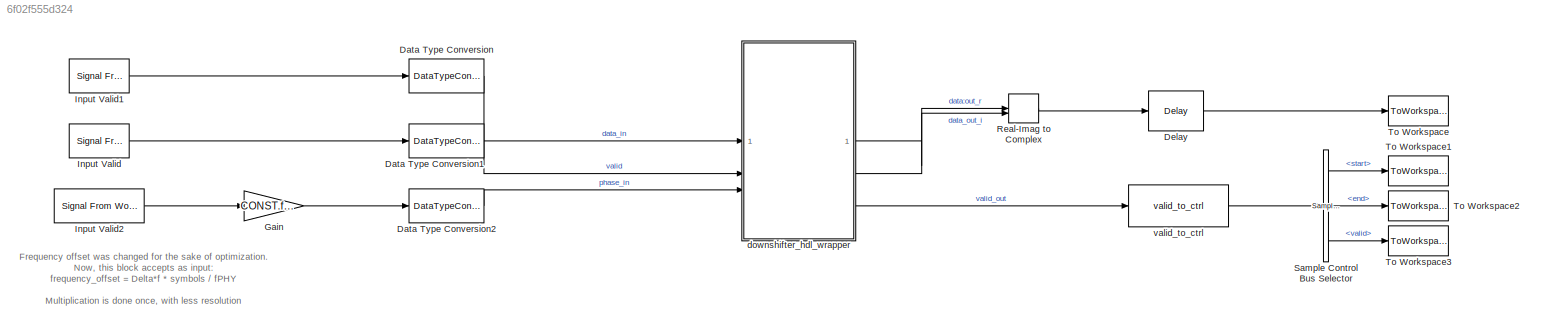
MODEL slx_6f02f555d324
KIND model
CONFIG AbsTol = auto
CONFIG EnableMultiTasking = off
CONFIG FixedStep = auto
CONFIG MaxStep = auto
CONFIG MinStep = auto
CONFIG RelTol = 1e-3
CONFIG SampleTimeConstraint = Unconstrained
CONFIG SolverName = FixedStepDiscrete
CONFIG StartTime = 0.0
CONFIG StopTime = stopTime
BLOCK [DataTypeConversion] Data Type Conversion
  OutDataTypeStr = CONST.rxDemodInputDataType
  RndMeth = Floor
  SaturateOnIntegerOverflow = off
BLOCK [DataTypeConversion] Data Type Conversion1
  OutDataTypeStr = boolean
  RndMeth = Floor
  SaturateOnIntegerOverflow = off
BLOCK [DataTypeConversion] Data Type Conversion2
  OutDataTypeStr = CONST.rxPhaseDataType
  RndMeth = Floor
  SaturateOnIntegerOverflow = off
BLOCK [Delay] Delay
  DelayLength = 1
  InitialCondition = 0
  InputPortMap = u0
  UseCircularBuffer = on
  UserDataPersistent = on
BLOCK [Gain] Gain
  Gain = CONST.frequencyOffsetTimeWindow
BLOCK [Reference] Input Valid  REF=dspsrcs4/Signal From
Workspace
  SourceBlock = dspsrcs4/Signal From\nWorkspace
  SourceType = Signal From Workspace
BLOCK [Reference] Input Valid1  REF=dspsrcs4/Signal From
Workspace
  SourceBlock = dspsrcs4/Signal From\nWorkspace
  SourceType = Signal From Workspace
BLOCK [Reference] Input Valid2  REF=dspsrcs4/Signal From
Workspace
  SourceBlock = dspsrcs4/Signal From\nWorkspace
  SourceType = Signal From Workspace
BLOCK [RealImagToComplex] Real-Imag to Complex
BLOCK [Reference] Sample Control Bus Selector  REF=whdlutilities/Sample Control
Bus Selector
  SourceBlock = whdlutilities/Sample Control\nBus Selector
BLOCK [ToWorkspace] To Workspace
  MaxDataPoints = inf
  SampleTime = 1/CONST.fADC
  Save2DSignal = 2-D array (concatenate along first dimension)
  VariableName = dataOut
BLOCK [ToWorkspace] To Workspace1
  MaxDataPoints = inf
  SampleTime = 1/CONST.fADC
  Save2DSignal = 2-D array (concatenate along first dimension)
  VariableName = startOut
BLOCK [ToWorkspace] To Workspace2
  MaxDataPoints = inf
  SampleTime = 1/CONST.fADC
  Save2DSignal = 2-D array (concatenate along first dimension)
  VariableName = endOut
BLOCK [ToWorkspace] To Workspace3
  MaxDataPoints = inf
  SampleTime = 1/CONST.fADC
  Save2DSignal = 2-D array (concatenate along first dimension)
  VariableName = validOut
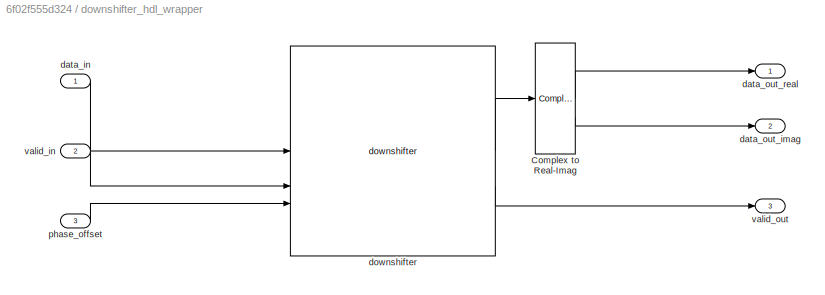
BLOCK [SubSystem] downshifter_hdl_wrapper
  TreatAsAtomicUnit = on
BLOCK [ComplexToRealImag] downshifter_hdl_wrapper/Complex to Real-Imag
BLOCK [Inport] downshifter_hdl_wrapper/data_in
BLOCK [Outport] downshifter_hdl_wrapper/data_out_imag
  Port = 2
BLOCK [Outport] downshifter_hdl_wrapper/data_out_real
BLOCK [Reference] downshifter_hdl_wrapper/downshifter  REF=HDL_ieee_8021513/downshifter
  SourceBlock = HDL_ieee_8021513/downshifter
  SourceProductName = HDL IEEE 8021513
  SourceType = SubSystem
BLOCK [Inport] downshifter_hdl_wrapper/phase_offset
  Port = 3
BLOCK [Inport] downshifter_hdl_wrapper/valid_in
  Port = 2
BLOCK [Outport] downshifter_hdl_wrapper/valid_out
  Port = 3
BLOCK [Reference] valid_to_ctrl  REF=HDL_ieee_8021513/valid_to_ctrl
  SourceBlock = HDL_ieee_8021513/valid_to_ctrl
  SourceProductName = HDL IEEE 8021513
  SourceType = SubSystem
ANNOTATION (root): Frequency offset was changed for the sake of optimization. Now, this block accepts as input: frequency_offset = Delta*f * symbols / fPHY Multiplication is done once, with less resolution
LINE Data Type Conversion1:1 -> downshifter_hdl_wrapper:2
LINE Data Type Conversion2:1 -> downshifter_hdl_wrapper:3
LINE Data Type Conversion:1 -> downshifter_hdl_wrapper:1
LINE Delay:1 -> To Workspace:1
LINE Gain:1 -> Data Type Conversion2:1
LINE Input Valid1:1 -> Data Type Conversion:1
LINE Input Valid2:1 -> Gain:1
LINE Input Valid:1 -> Data Type Conversion1:1
LINE Real-Imag to Complex:1 -> Delay:1
LINE Sample Control Bus Selector:1 -> To Workspace1:1
LINE Sample Control Bus Selector:2 -> To Workspace2:1
LINE Sample Control Bus Selector:3 -> To Workspace3:1
LINE downshifter_hdl_wrapper/Complex to Real-Imag:1 -> downshifter_hdl_wrapper/data_out_real:1
LINE downshifter_hdl_wrapper/Complex to Real-Imag:2 -> downshifter_hdl_wrapper/data_out_imag:1
LINE downshifter_hdl_wrapper/data_in:1 -> downshifter_hdl_wrapper/downshifter:1
LINE downshifter_hdl_wrapper/downshifter:1 -> downshifter_hdl_wrapper/Complex to Real-Imag:1
LINE downshifter_hdl_wrapper/downshifter:2 -> downshifter_hdl_wrapper/valid_out:1
LINE downshifter_hdl_wrapper/phase_offset:1 -> downshifter_hdl_wrapper/downshifter:3
LINE downshifter_hdl_wrapper/valid_in:1 -> downshifter_hdl_wrapper/downshifter:2
LINE downshifter_hdl_wrapper:1 -> Real-Imag to Complex:1
LINE downshifter_hdl_wrapper:2 -> Real-Imag to Complex:2
LINE downshifter_hdl_wrapper:3 -> valid_to_ctrl:1
LINE valid_to_ctrl:1 -> Sample Control Bus Selector:1
